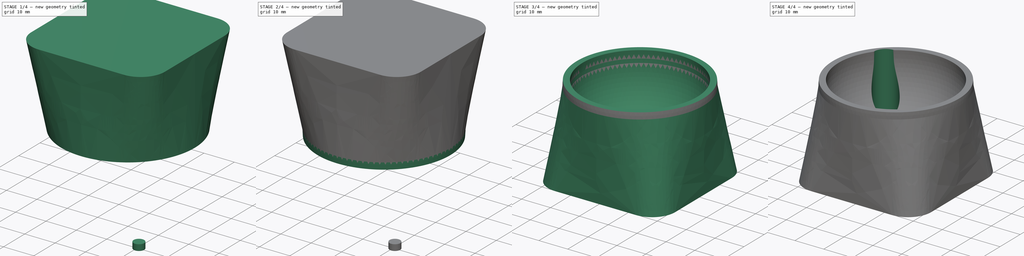
[diagram: build sequence overview — one tinted view per stage of 4, left to right]
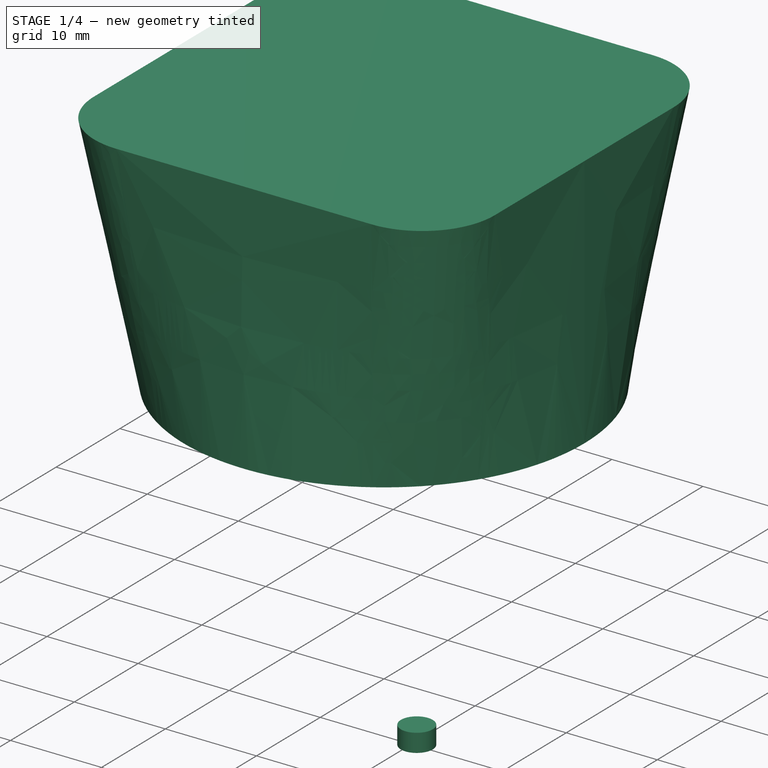
[diagram: stage 1 of 4 — iso view after this stage's code; geometry added in this stage tinted green]
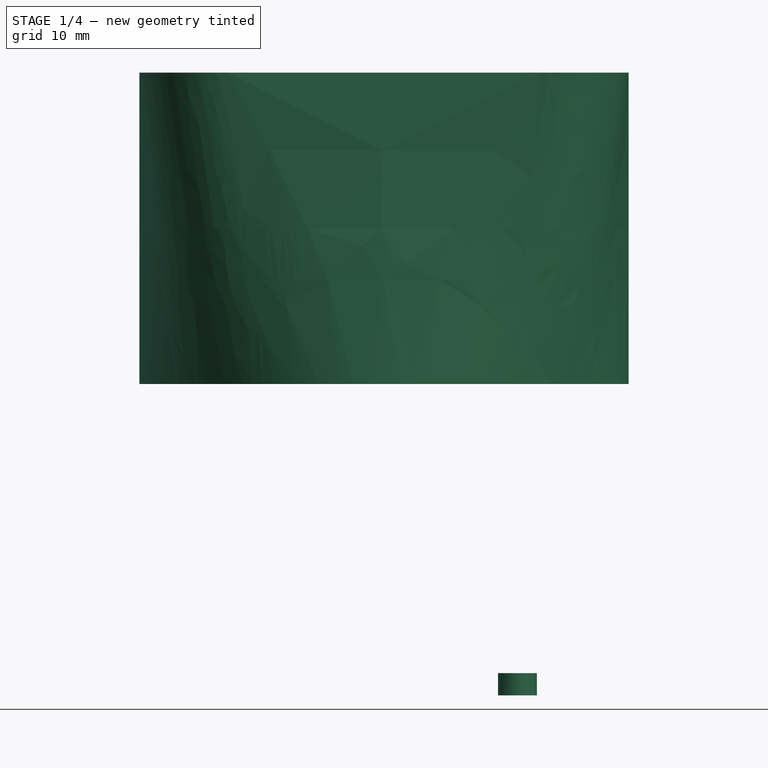
[diagram: stage 1 of 4 — front view after this stage's code; geometry added in this stage tinted green]
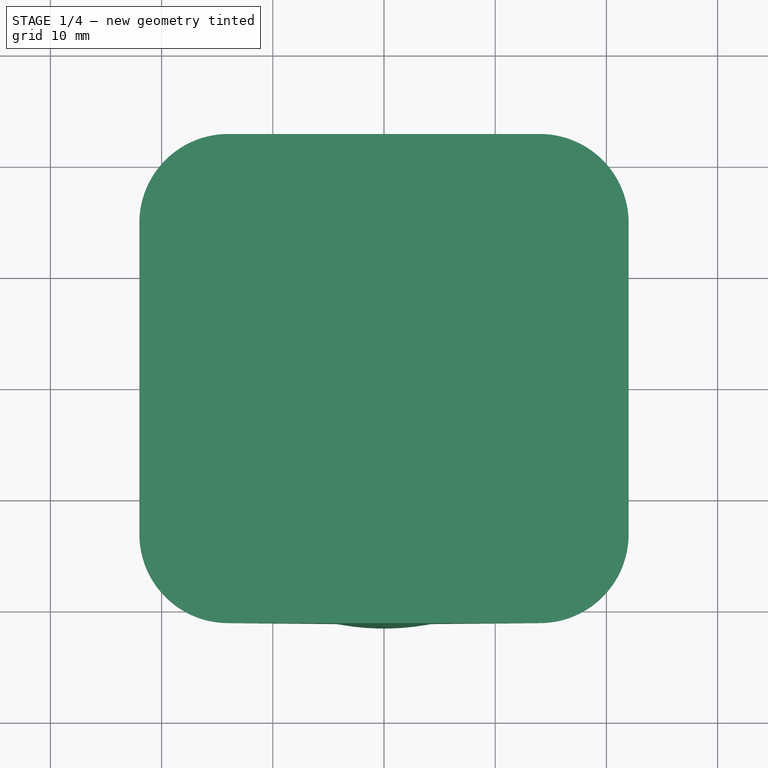
[diagram: stage 1 of 4 — top view after this stage's code; geometry added in this stage tinted green]
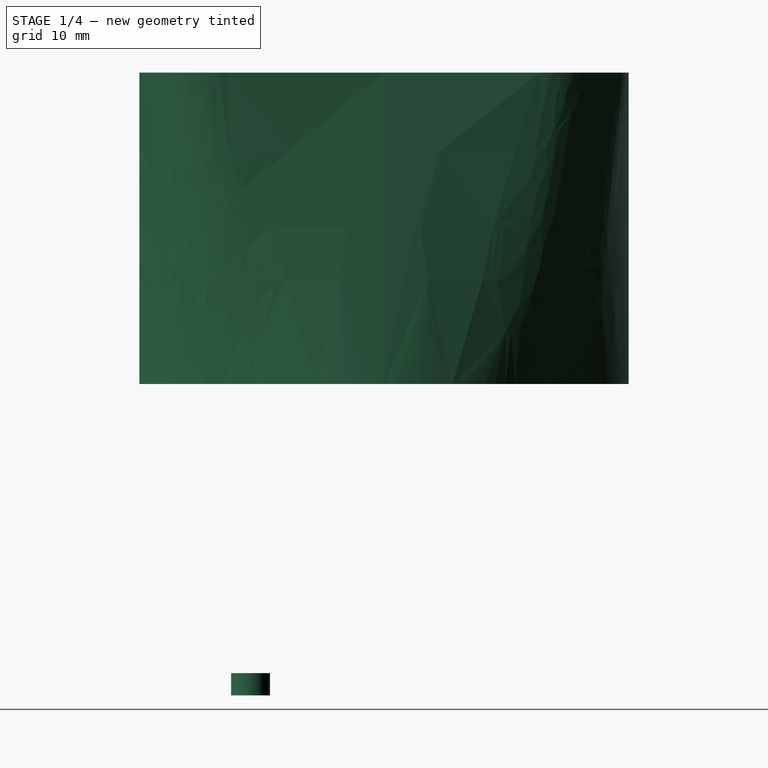
[diagram: stage 1 of 4 — right view after this stage's code; geometry added in this stage tinted green]
FCSTD DOCUMENT  (FreeCAD 0.16R)
Label: SquashBallFoot_2020_90_B
License: All rights reserved
LicenseURL: http://en.wikipedia.org/wiki/All_rights_reserved
objects: Sketcher::SketchObject×5, Part::Sphere×2, Part::Cut×2, PartDesign::Pocket×2, Part::Box×1, Part::Loft×1, Part::MultiFuse×1, Spreadsheet::Sheet×1, PartDesign::Pad×1
note: 18 computed .brp shape members not serialized (recipe doc carries the construction recipe); baked Part::Feature solids carry a one-line shape summary decoded from their .brp

FEATURE [Sketcher::SketchObject] Sketch  label="Circle"
  sketch-geometry (1):
    g0: Circle CenterX=0 CenterY=0 CenterZ=0 NormalX=0 NormalY=0 NormalZ=1 Radius=22
  constraints (2):
    c: Coincident(g0,g-1)
    c: Radius(g0) = 22
FEATURE [Sketcher::SketchObject] Sketch001  label="Rectangle"
  Placement = pos=(0,0,28) rot=(0,0,1;0rad)
  sketch-geometry (8):
    g0: LineSegment StartX=-14 StartY=22 StartZ=0 EndX=14 EndY=22 EndZ=0
    g1: LineSegment StartX=22 StartY=14 StartZ=0 EndX=22 EndY=-14 EndZ=0
    g2: LineSegment StartX=14 StartY=-22 StartZ=0 EndX=-14 EndY=-22 EndZ=0
    g3: LineSegment StartX=-22 StartY=-14 StartZ=0 EndX=-22 EndY=14 EndZ=0
    g4: ArcOfCircle CenterX=-14 CenterY=14 CenterZ=0 NormalX=0 NormalY=0 NormalZ=1 Radius=8 StartAngle=1.5708 EndAngle=3.14159
    g5: ArcOfCircle CenterX=14 CenterY=14 CenterZ=0 NormalX=0 NormalY=0 NormalZ=1 Radius=8 StartAngle=0 EndAngle=1.5708
    g6: ArcOfCircle CenterX=14 CenterY=-14 CenterZ=0 NormalX=0 NormalY=0 NormalZ=1 Radius=8 StartAngle=4.71239 EndAngle=6.28319
    g7: ArcOfCircle CenterX=-14 CenterY=-14 CenterZ=0 NormalX=0 NormalY=0 NormalZ=1 Radius=8 StartAngle=3.14159 EndAngle=4.71239
  constraints (21):
    c: Horizontal(g0)
    c: Horizontal(g2)
    c: Vertical(g1)
    c: Vertical(g3)
    c: Tangent(g0,g4) = 1.5708
    c: Tangent(g3,g4) = 1.5708
    c: Tangent(g0,g5) = 1.5708
    c: Tangent(g1,g5) = 1.5708
    c: Tangent(g1,g6) = 1.5708
    c: Tangent(g2,g6) = 1.5708
    c: Tangent(g2,g7) = 1.5708
    c: Tangent(g3,g7) = 1.5708
    c: Equal(g4,g5)
    c: Equal(g5,g6)
    c: Equal(g6,g7)
    c: Equal(g0,g1)
    c: Equal(g1,g2)
    c: Equal(g2,g3)
    c: Radius(g4) = 8
    c: DistanceX(g3,g1) = 44
    c: Symmetric(g4,g6,g-1)
FEATURE [Part::Loft] Loft
  Closed = false
  Ruled = false
  Sections = -> [Sketch,Sketch001]
  Solid = true
FEATURE [Spreadsheet::Sheet] Spreadsheet
  cells = B2=Cover_%; C2(cover)=10
FEATURE [Sketcher::SketchObject] Sketch004
  Placement = pos=(12,-12,-28) rot=(0,0,1;0rad)
  sketch-geometry (1):
    g0: Circle CenterX=0 CenterY=0 CenterZ=0 NormalX=0 NormalY=0 NormalZ=1 Radius=1.75
  constraints (2):
    c: Coincident(g0,g-1)
    c: Radius(g0) = 1.75
FEATURE [PartDesign::Pad] Pad
  Length = 2
  Length2 = 100
  Placement = pos=(12,-12,-28) rot=(0,0,1;0rad)
  Sketch = -> Sketch004
  Type = 0
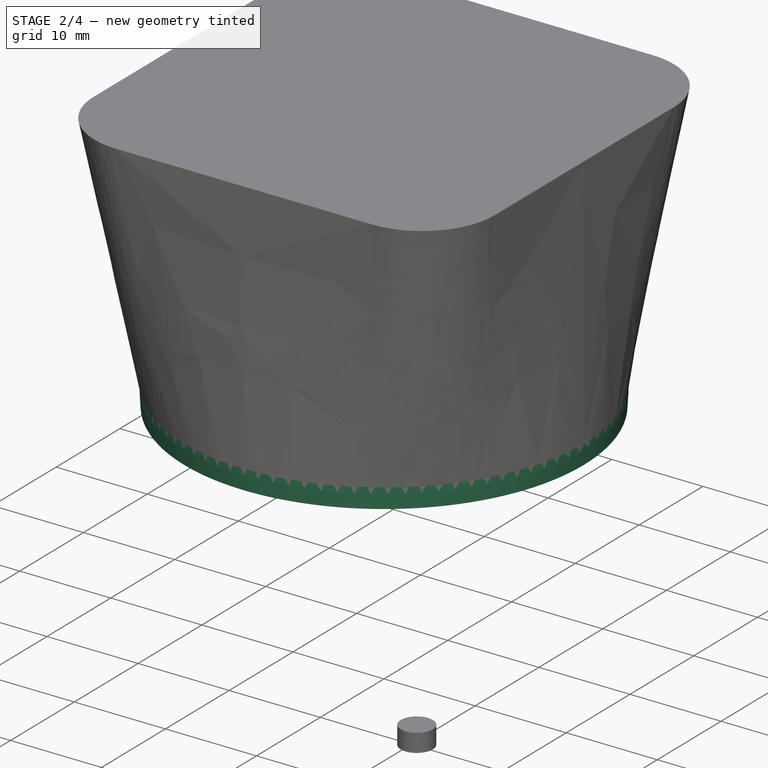
[diagram: stage 2 of 4 — iso view after this stage's code; geometry added in this stage tinted green]
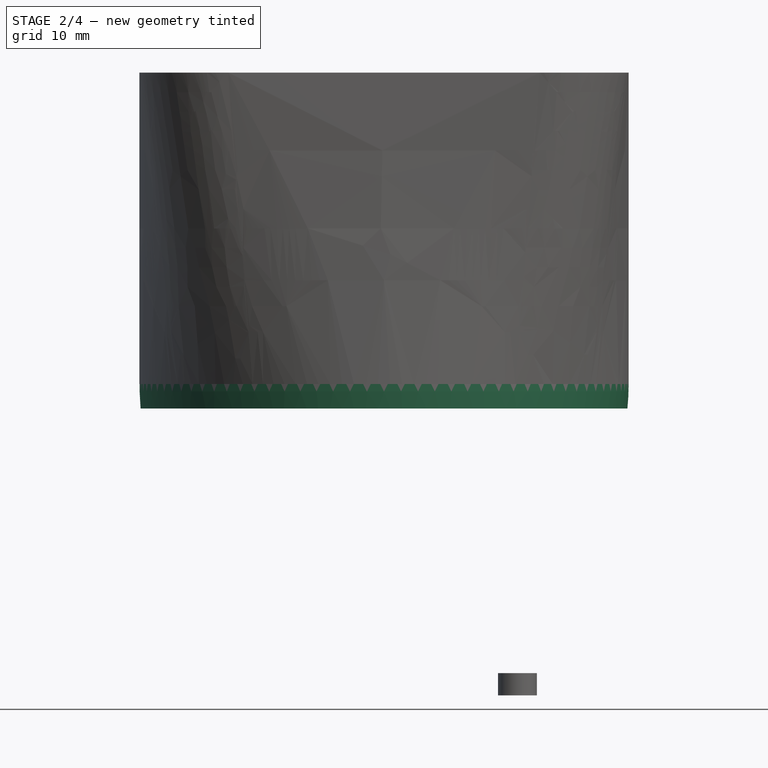
[diagram: stage 2 of 4 — front view after this stage's code; geometry added in this stage tinted green]
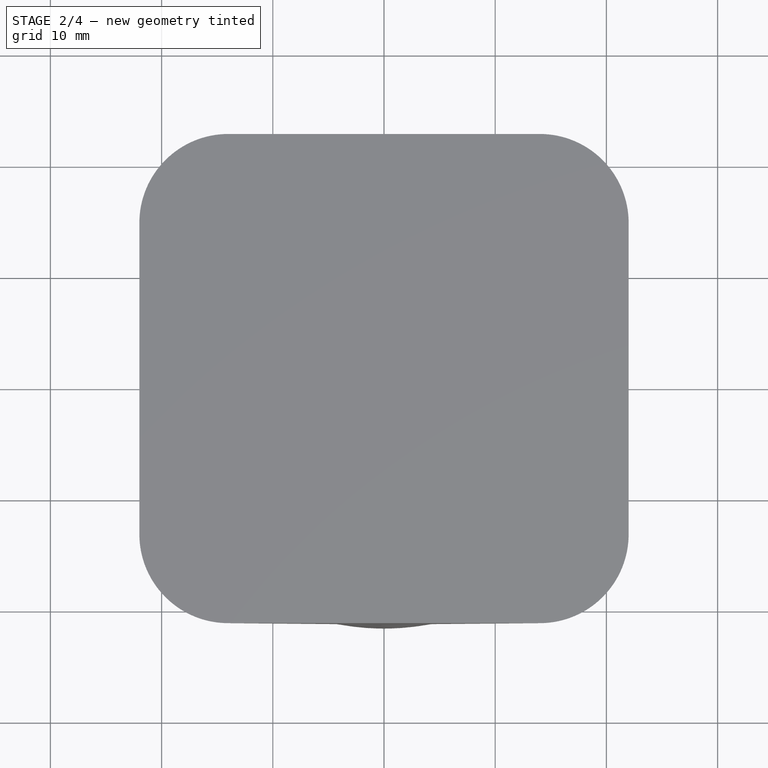
[diagram: stage 2 of 4 — top view after this stage's code; geometry added in this stage tinted green]
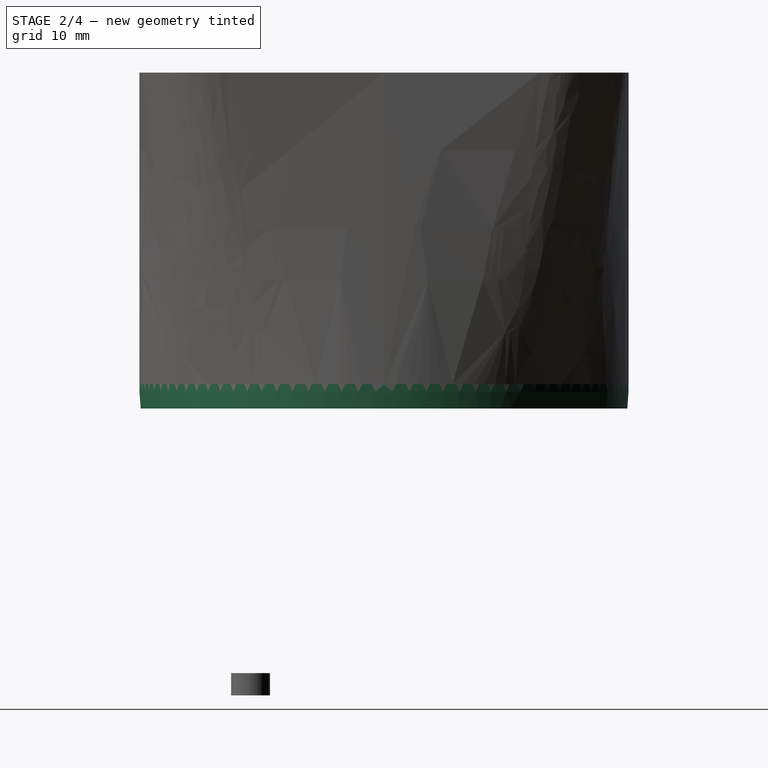
[diagram: stage 2 of 4 — right view after this stage's code; geometry added in this stage tinted green]
FEATURE [Part::Sphere] Sphere
  Angle1 = -90
  Angle2 = 90
  Angle3 = 360
  Radius = 22
FEATURE [Part::Box] Box  label="Cube"
  Height = 44
  Length = 44
  Placement = pos=(-22,-22,-46.2) rot=(0,0,1;0rad)
  Width = 44
  expr: Placement.Base.z = -44 - 22 * Spreadsheet.cover / 100
FEATURE [Part::Cut] Cut
  Base = -> Sphere
  Tool = -> Box
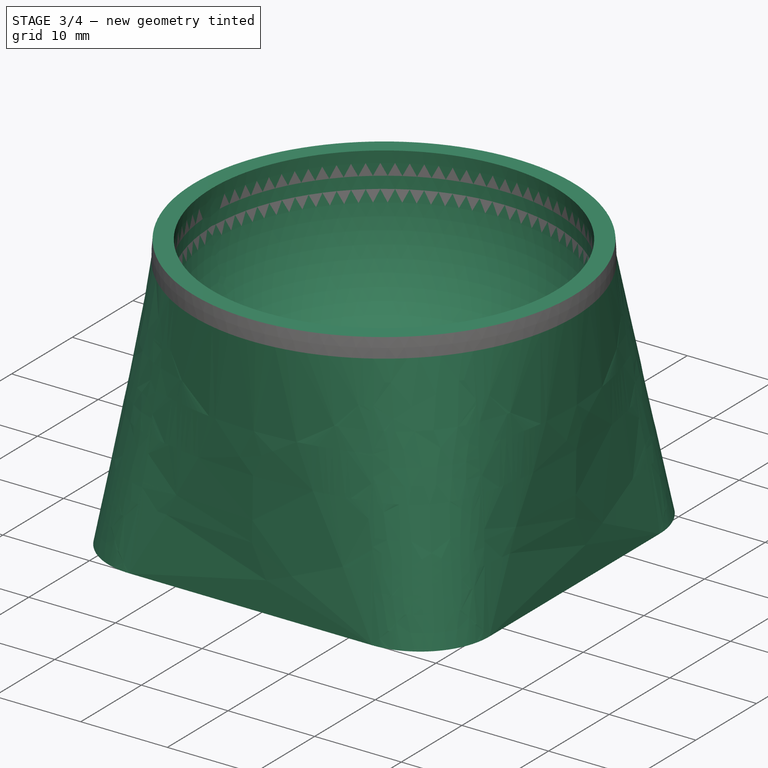
[diagram: stage 3 of 4 — iso view after this stage's code; geometry added in this stage tinted green]
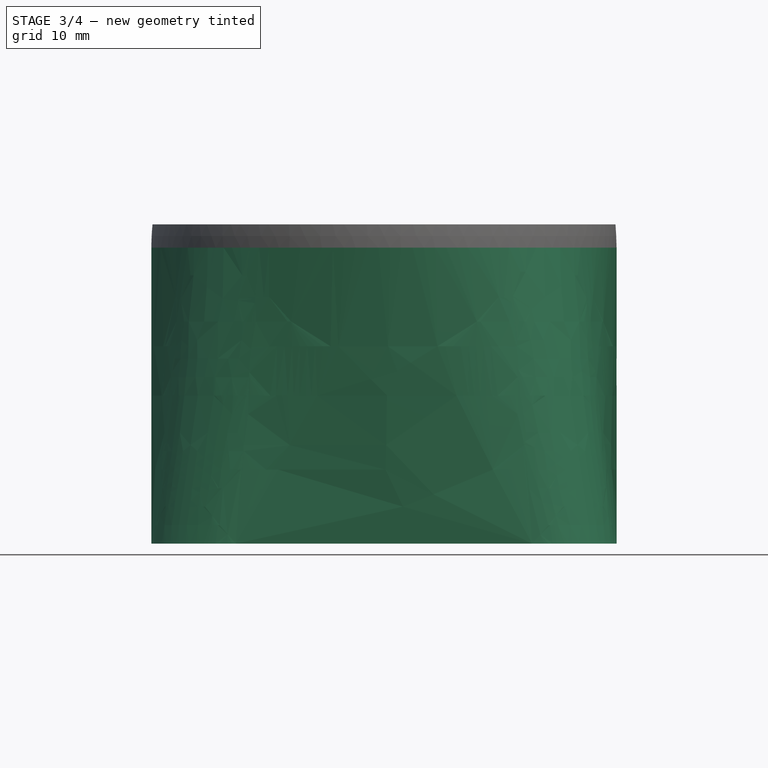
[diagram: stage 3 of 4 — front view after this stage's code; geometry added in this stage tinted green]
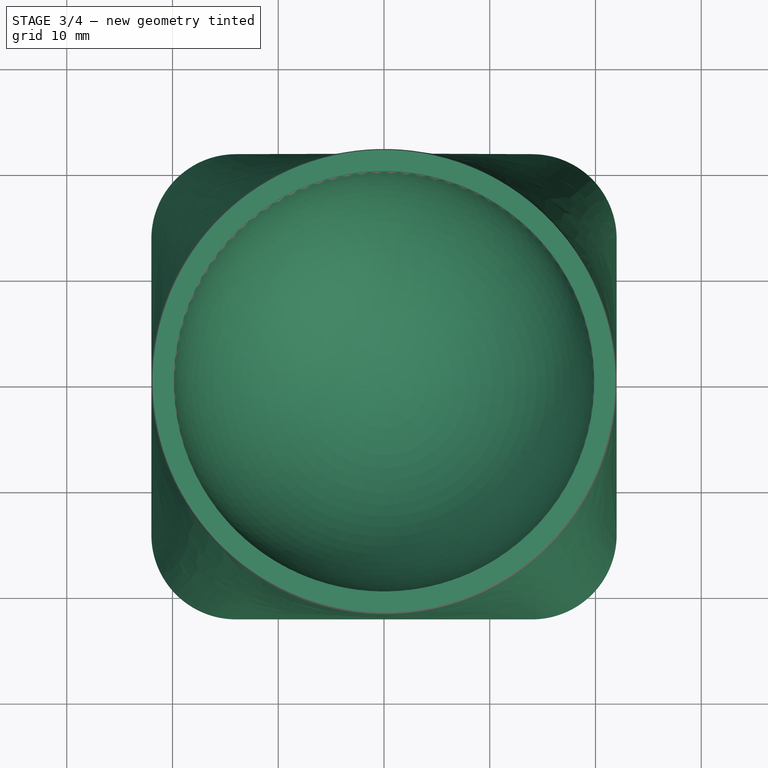
[diagram: stage 3 of 4 — top view after this stage's code; geometry added in this stage tinted green]
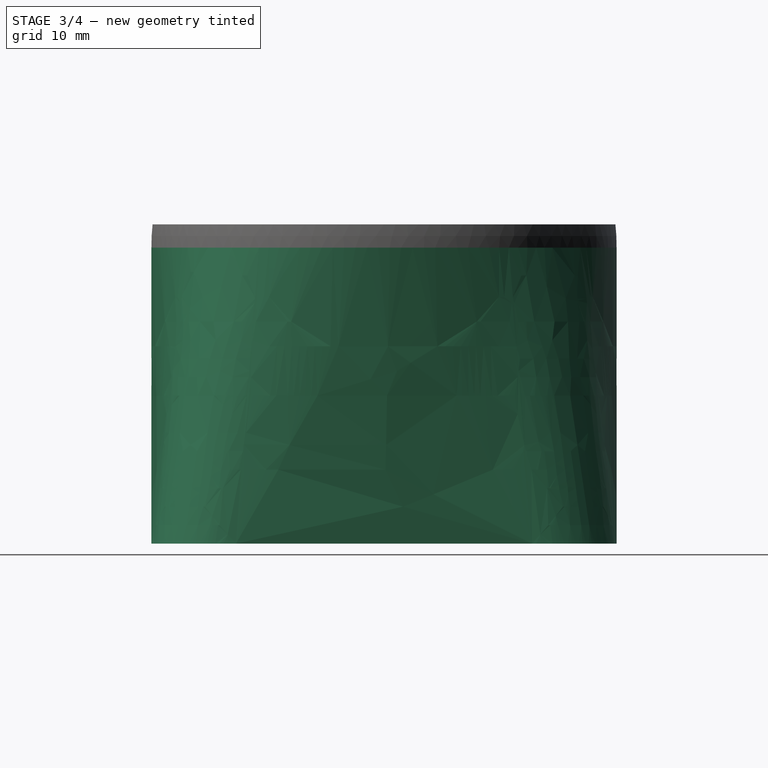
[diagram: stage 3 of 4 — right view after this stage's code; geometry added in this stage tinted green]
FEATURE [Part::Sphere] Sphere001
  Angle1 = -90
  Angle2 = 90
  Angle3 = 360
  Radius = 20
FEATURE [Part::MultiFuse] Fusion
  Shapes = -> [Loft,Cut]
FEATURE [Part::Cut] Cut001
  Base = -> Fusion
  Placement = pos=(0,0,0) rot=(0,1,0;3.14159rad)
  Tool = -> Sphere001
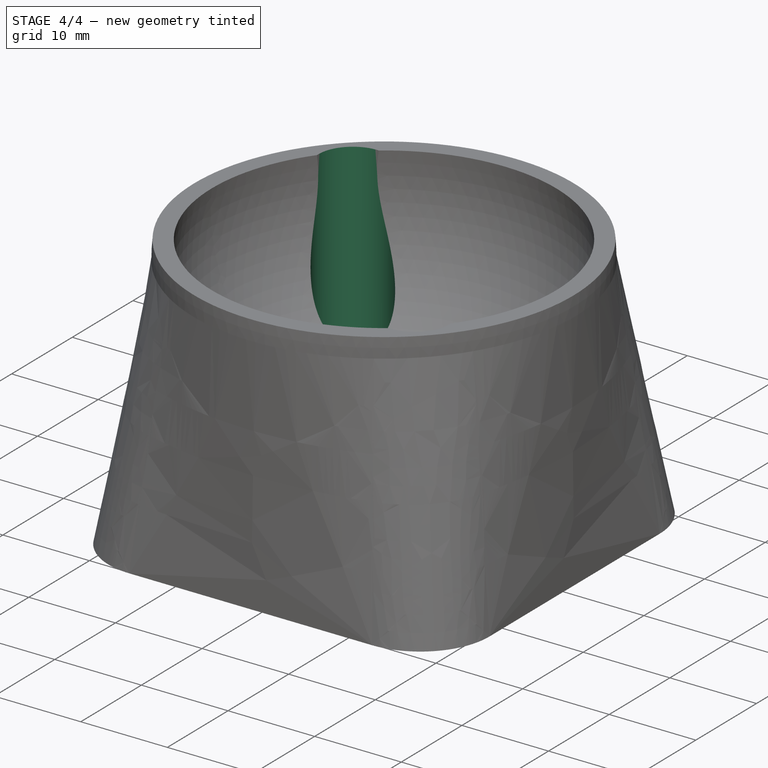
[diagram: stage 4 of 4 — iso view after this stage's code; geometry added in this stage tinted green]
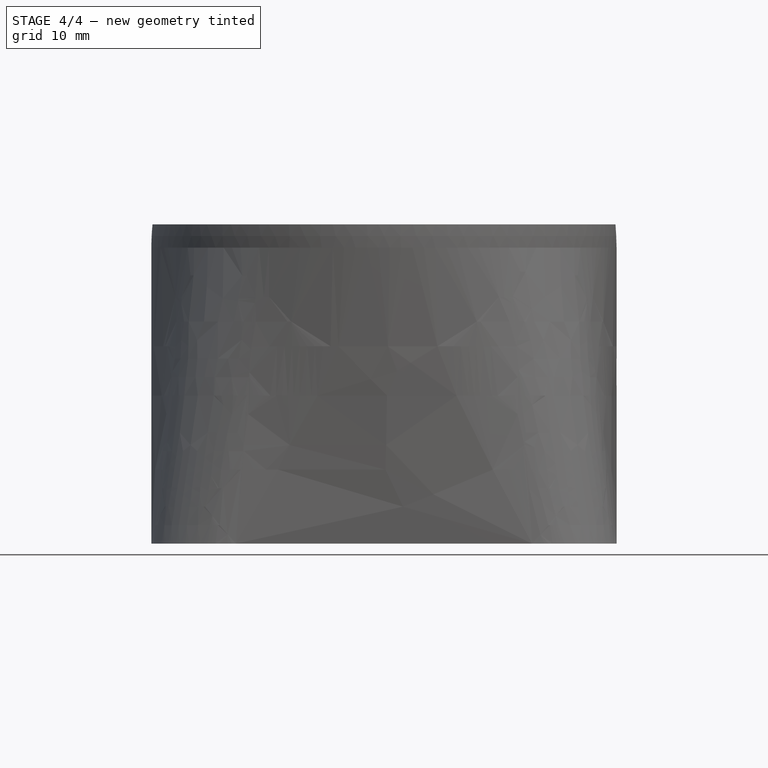
[diagram: stage 4 of 4 — front view after this stage's code; geometry added in this stage tinted green]
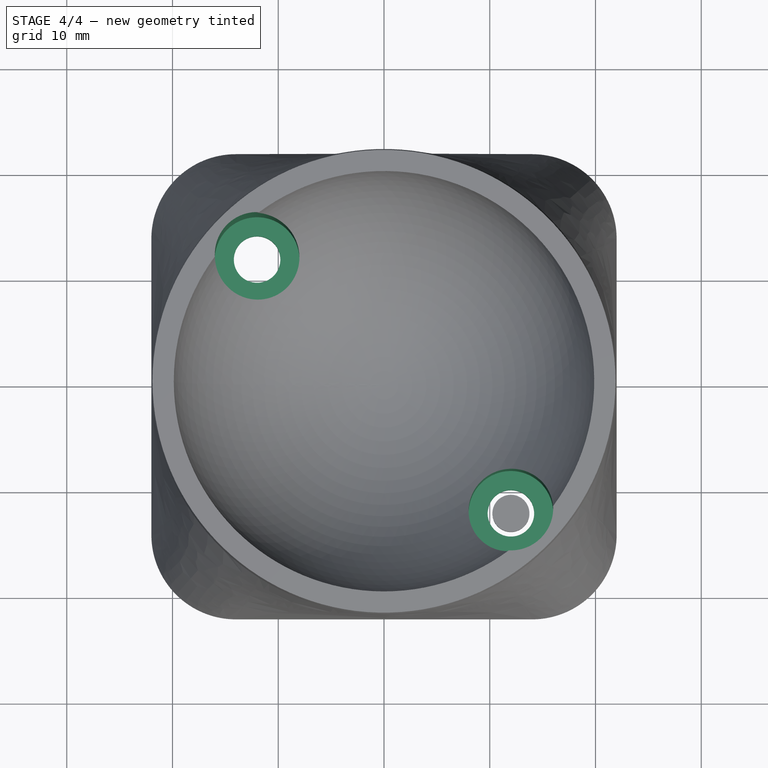
[diagram: stage 4 of 4 — top view after this stage's code; geometry added in this stage tinted green]
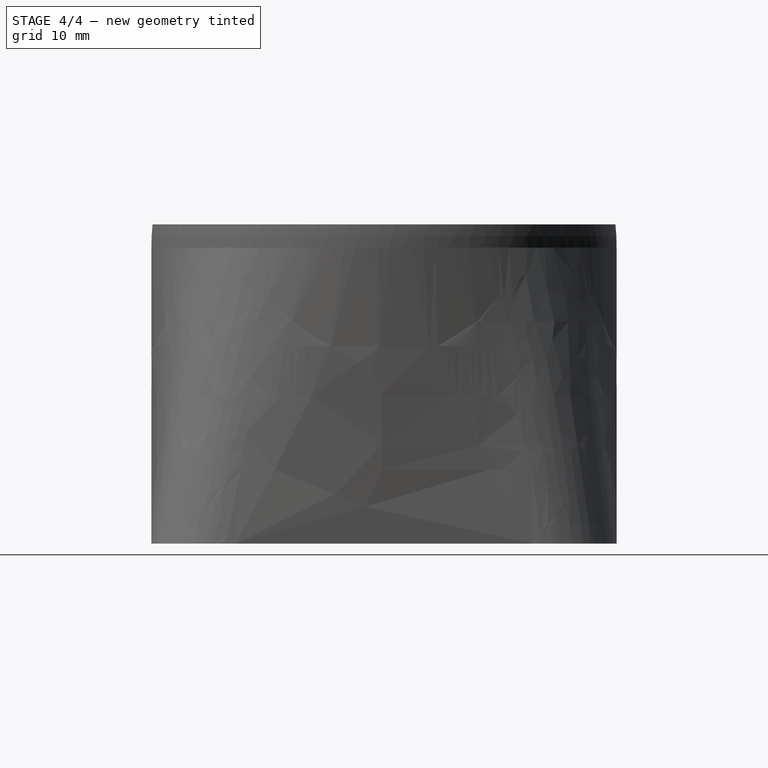
[diagram: stage 4 of 4 — right view after this stage's code; geometry added in this stage tinted green]
FEATURE [Sketcher::SketchObject] Sketch002  label="ScrewHoles"
  Placement = pos=(0,0,-28) rot=(0,1,0;3.14159rad)
  Support = -> Cut001 [Face1]
  sketch-geometry (6):
    g0: LineSegment [constr] StartX=-22 StartY=22 StartZ=0 EndX=22 EndY=22 EndZ=0
    g1: LineSegment [constr] StartX=22 StartY=22 StartZ=0 EndX=22 EndY=-22 EndZ=0
    g2: LineSegment [constr] StartX=22 StartY=-22 StartZ=0 EndX=-22 EndY=-22 EndZ=0
    g3: LineSegment [constr] StartX=-22 StartY=-22 StartZ=0 EndX=-22 EndY=22 EndZ=0
    g4: Circle CenterX=-12 CenterY=-12 CenterZ=0 NormalX=0 NormalY=0 NormalZ=1 Radius=2.2
    g5: Circle CenterX=12 CenterY=12 CenterZ=0 NormalX=0 NormalY=0 NormalZ=1 Radius=2.2
  constraints (16):
    c: Coincident(g0,g1)
    c: Coincident(g1,g2)
    c: Coincident(g2,g3)
    c: Coincident(g3,g0)
    c: Horizontal(g0)
    c: Horizontal(g2)
    c: Vertical(g1)
    c: Vertical(g3)
    c: Symmetric(g0,g1,g-1)
    c: Equal(g0,g1)
    c: DistanceX(g0,g0) = 44
    c: Equal(g4,g5)
    c: Radius(g4) = 2.2
    c: Symmetric(g5,g4,g-1)
    c: DistanceY(g4,g-1) = 12
    c: DistanceX(g4,g-1) = 12
FEATURE [PartDesign::Pocket] Pocket
  Length = 5
  Placement = pos=(0,0,0) rot=(0,1,0;3.14159rad)
  Sketch = -> Sketch002
  Type = 1
FEATURE [Sketcher::SketchObject] Sketch003  label="HeadHoles"
  Placement = pos=(0,0,2.2) rot=(0,0,1;3.14159rad)
  Support = -> Pocket [Face15]
  sketch-geometry (2):
    g0: Circle CenterX=-12 CenterY=12 CenterZ=0 NormalX=0 NormalY=0 NormalZ=1 Radius=4
    g1: Circle CenterX=12 CenterY=-12 CenterZ=0 NormalX=0 NormalY=0 NormalZ=1 Radius=4
  constraints (5):
    c: Equal(g0,g1)
    c: Radius(g0) = 4
    c: Symmetric(g1,g0,g-1)
    c: DistanceX(g0,g-1) = 12
    c: DistanceY(g-1,g0) = 12
FEATURE [PartDesign::Pocket] Pocket001
  Length = 28.2
  Placement = pos=(0,0,0) rot=(0,1,0;3.14159rad)
  Sketch = -> Sketch003
  Type = 0
  expr: Length = 28 + 22 * Spreadsheet.cover / 100 - 2
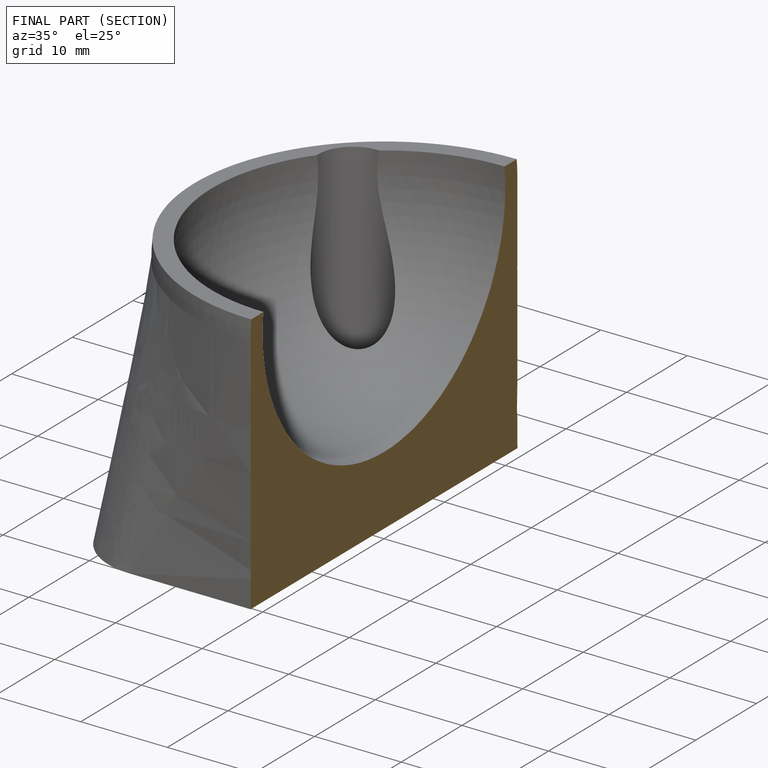
[diagram: finished part — half-section view (interior)]
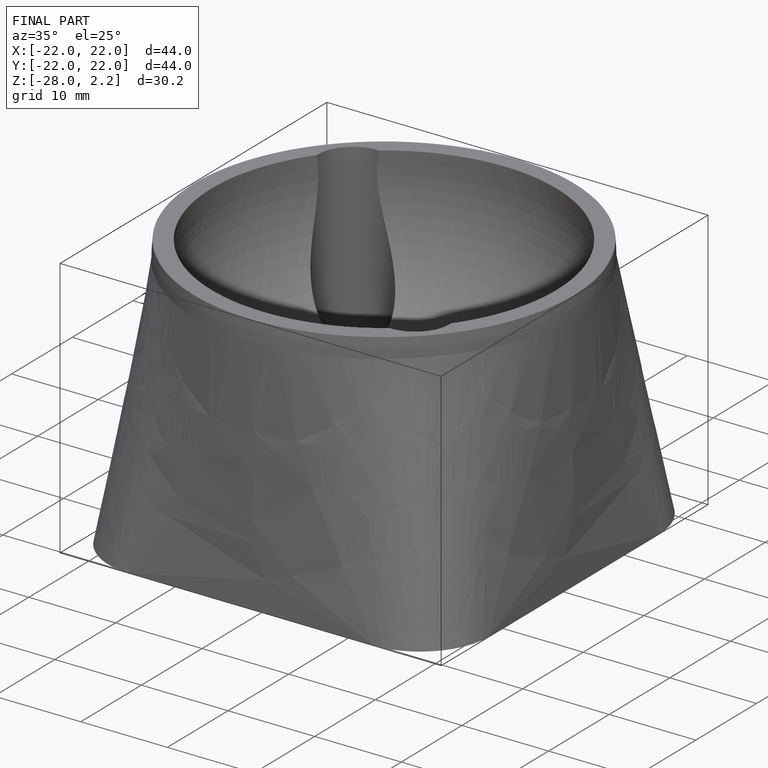
[diagram: finished part — iso view with bounding-box wireframe]
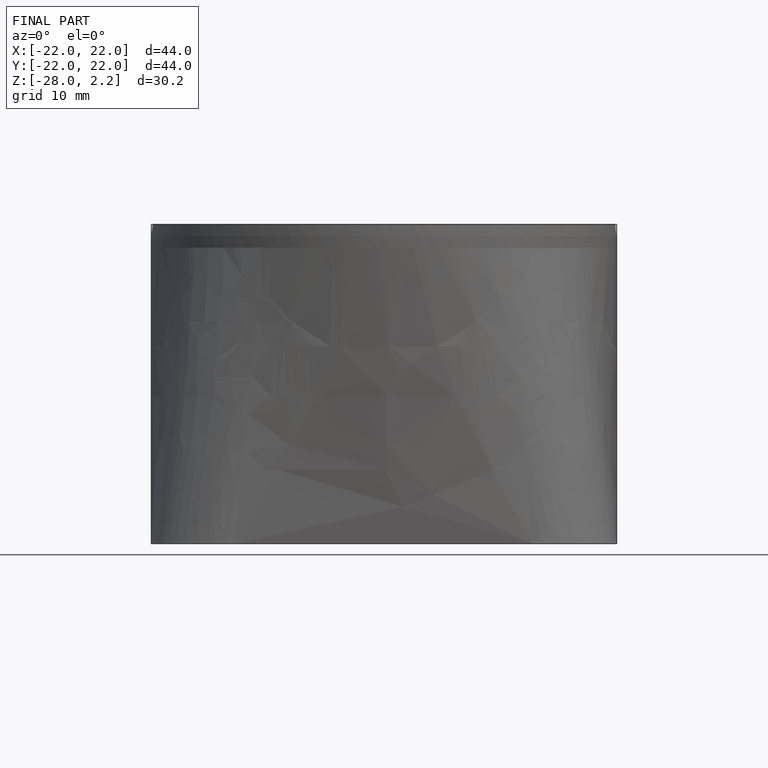
[diagram: finished part — front view with bounding-box wireframe]
